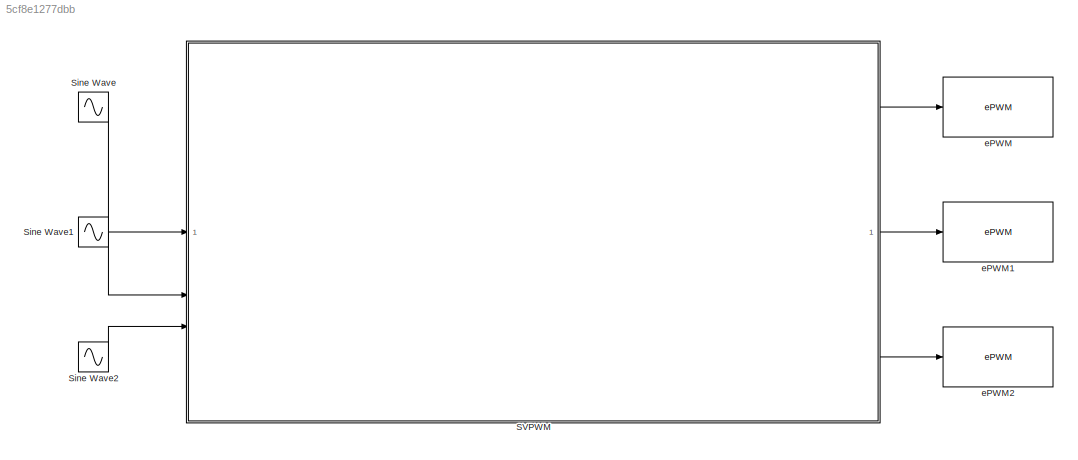
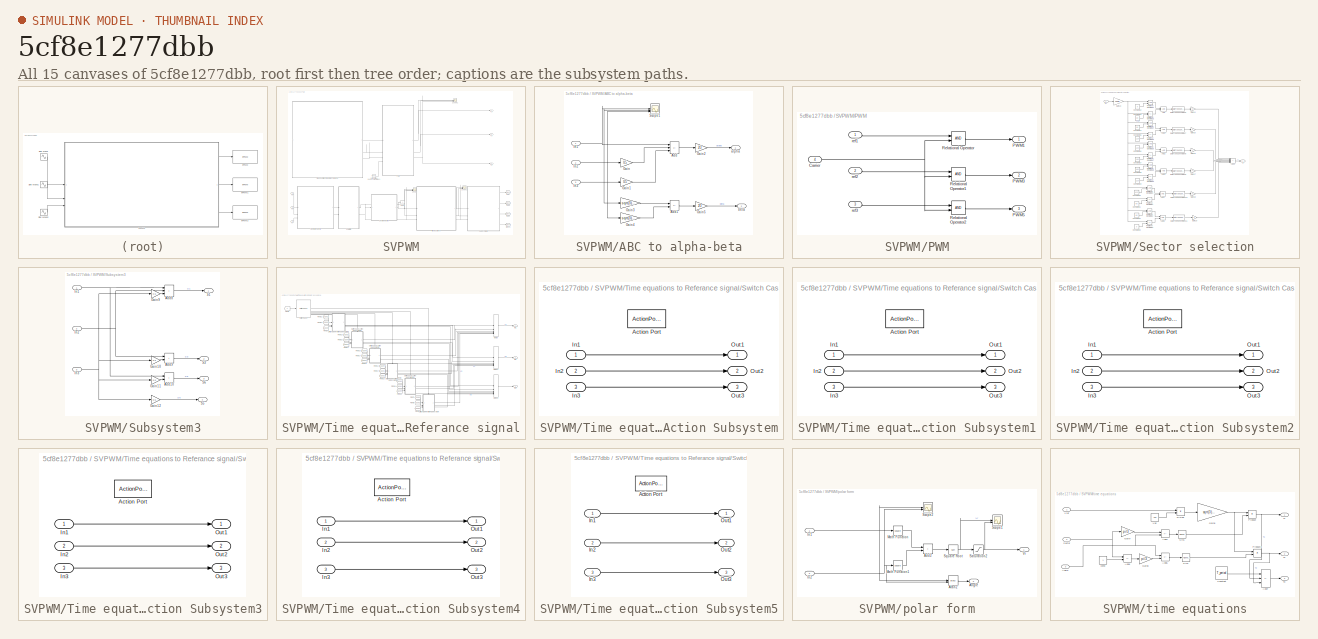
[diagram: thumbnail index - all 15 canvases of the model, root first then tree order]
MODEL slx_5cf8e1277dbb
KIND model
CONFIG AbsTol = auto
CONFIG EnableMultiTasking = on
CONFIG FixedStep = auto
CONFIG MaxStep = auto
CONFIG MinStep = auto
CONFIG RelTol = 1e-3
CONFIG SampleTimeConstraint = Unconstrained
CONFIG SolverName = FixedStepDiscrete
CONFIG StartTime = 0.0
CONFIG StopTime = Inf
BLOCK [SubSystem] SVPWM
BLOCK [SubSystem] SVPWM/ABC to alpha-beta
BLOCK [Sum] SVPWM/ABC to alpha-beta/Add
  IconShape = rectangular
  Inputs = +--
BLOCK [Sum] SVPWM/ABC to alpha-beta/Add1
  IconShape = rectangular
  Inputs = +-
BLOCK [Gain] SVPWM/ABC to alpha-beta/Gain
  Gain = 0.5
BLOCK [Gain] SVPWM/ABC to alpha-beta/Gain1
  Gain = 0.5
BLOCK [Gain] SVPWM/ABC to alpha-beta/Gain2
  Gain = 2/3
BLOCK [Gain] SVPWM/ABC to alpha-beta/Gain3
  Gain = sqrt(3)/2
BLOCK [Gain] SVPWM/ABC to alpha-beta/Gain4
  Gain = sqrt(3)/2
BLOCK [Gain] SVPWM/ABC to alpha-beta/Gain5
  Gain = 2/3
BLOCK [Inport] SVPWM/ABC to alpha-beta/In1
BLOCK [Inport] SVPWM/ABC to alpha-beta/In2
  Port = 2
BLOCK [Inport] SVPWM/ABC to alpha-beta/In3
  Port = 3
BLOCK [Scope] SVPWM/ABC to alpha-beta/Scope1
  Floating = off
  NumInputPorts = 3
  ScopeSpecificationString = Simulink.scopes.TimeScopeBlockCfg('CurrentConfiguration', extmgr.ConfigurationSet(extmgr.Configuration('Core','General UI',true),extmgr.Configuration('Core','Source UI',true),extmgr.Configuration('Sources','WiredSimulink',true,'DataLoggingVariableName','ScopeData1'),extmgr.Configuration('Visuals','Time Domain',true,'SerializedDisplays',{struct('MinYLimReal','-196.71599','MaxYLimReal','220.21077','...<+1548ch>
BLOCK [Outport] SVPWM/ABC to alpha-beta/alpha
BLOCK [Outport] SVPWM/ABC to alpha-beta/beta
  Port = 2
BLOCK [Goto] SVPWM/Goto10
  GotoTag = case4
  TagVisibility = global
BLOCK [Goto] SVPWM/Goto6
  TagVisibility = global
BLOCK [Goto] SVPWM/Goto7
  GotoTag = case1
  TagVisibility = global
BLOCK [Goto] SVPWM/Goto8
  GotoTag = case2
  TagVisibility = global
BLOCK [Goto] SVPWM/Goto9
  GotoTag = case3
  TagVisibility = global
BLOCK [SubSystem] SVPWM/PWM
BLOCK [Inport] SVPWM/PWM/Carrier
  Port = 4
BLOCK [Outport] SVPWM/PWM/PWM1
BLOCK [Outport] SVPWM/PWM/PWM3
  Port = 2
BLOCK [Outport] SVPWM/PWM/PWM5
  Port = 3
BLOCK [RelationalOperator] SVPWM/PWM/Relational Operator
  InputSameDT = off
  OutDataTypeStr = boolean
  RndMeth = Simplest
BLOCK [RelationalOperator] SVPWM/PWM/Relational Operator1
  InputSameDT = off
  OutDataTypeStr = boolean
  RndMeth = Simplest
BLOCK [RelationalOperator] SVPWM/PWM/Relational Operator2
  InputSameDT = off
  OutDataTypeStr = boolean
  RndMeth = Simplest
BLOCK [Inport] SVPWM/PWM/ref1
BLOCK [Inport] SVPWM/PWM/ref2
  Port = 2
BLOCK [Inport] SVPWM/PWM/ref3
  Port = 3
BLOCK [Reference] SVPWM/Repeating Sequence Interpolated1  REF=simulink/Sources/Repeating
Sequence
Interpolated
  SourceBlock = simulink/Sources/Repeating\nSequence\nInterpolated
  SourceType = Repeating Sequence Interpolated
BLOCK [Scope] SVPWM/Scope
  Floating = off
  NumInputPorts = 3
  ScopeSpecificationString = Simulink.scopes.TimeScopeBlockCfg('CurrentConfiguration', extmgr.ConfigurationSet(extmgr.Configuration('Core','General UI',true),extmgr.Configuration('Core','Source UI',true),extmgr.Configuration('Sources','WiredSimulink',true,'DataLoggingVariableName','ScopeData1'),extmgr.Configuration('Visuals','Time Domain',true),extmgr.Configuration('Tools','Plot Navigation',true),extmgr.Configuration('Tools',...<+40ch>
BLOCK [Scope] SVPWM/Scope1
  Floating = off
  NumInputPorts = 3
  ScopeSpecificationString = Simulink.scopes.TimeScopeBlockCfg('CurrentConfiguration', extmgr.ConfigurationSet(extmgr.Configuration('Core','General UI',true),extmgr.Configuration('Core','Source UI',true),extmgr.Configuration('Sources','WiredSimulink',true,'DataLoggingVariableName','ScopeData2'),extmgr.Configuration('Visuals','Time Domain',true),extmgr.Configuration('Tools','Plot Navigation',true),extmgr.Configuration('Tools',...<+40ch>
BLOCK [Scope] SVPWM/Scope2
  Floating = off
  NumInputPorts = 3
  ScopeSpecificationString = Simulink.scopes.TimeScopeBlockCfg('CurrentConfiguration', extmgr.ConfigurationSet(extmgr.Configuration('Core','General UI',true),extmgr.Configuration('Core','Source UI',true),extmgr.Configuration('Sources','WiredSimulink',true,'DataLoggingVariableName','ScopeData3'),extmgr.Configuration('Visuals','Time Domain',true,'SerializedDisplays',{struct('MinYLimReal','-0.125','MaxYLimReal','1.125','YLabelRe...<+3033ch>
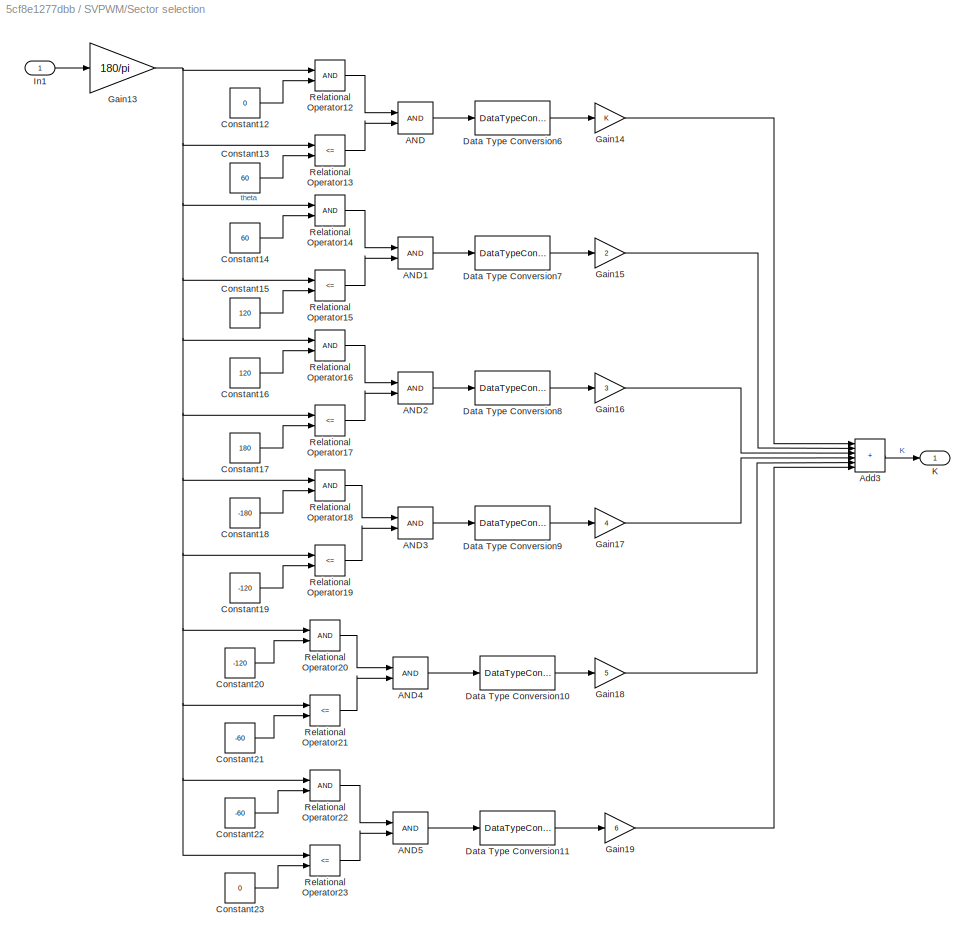
BLOCK [SubSystem] SVPWM/Sector selection
BLOCK [Logic] SVPWM/Sector selection/AND
  AllPortsSameDT = off
  IconShape = distinctive
  OutDataTypeStr = boolean
BLOCK [Logic] SVPWM/Sector selection/AND1
  AllPortsSameDT = off
  IconShape = distinctive
  OutDataTypeStr = boolean
BLOCK [Logic] SVPWM/Sector selection/AND2
  AllPortsSameDT = off
  IconShape = distinctive
  OutDataTypeStr = boolean
BLOCK [Logic] SVPWM/Sector selection/AND3
  AllPortsSameDT = off
  IconShape = distinctive
  OutDataTypeStr = boolean
BLOCK [Logic] SVPWM/Sector selection/AND4
  AllPortsSameDT = off
  IconShape = distinctive
  OutDataTypeStr = boolean
BLOCK [Logic] SVPWM/Sector selection/AND5
  AllPortsSameDT = off
  IconShape = distinctive
  OutDataTypeStr = boolean
BLOCK [Sum] SVPWM/Sector selection/Add3
  IconShape = rectangular
  Inputs = ++++++
BLOCK [Constant] SVPWM/Sector selection/Constant12
  Value = 0
BLOCK [Constant] SVPWM/Sector selection/Constant13
  Value = 60
BLOCK [Constant] SVPWM/Sector selection/Constant14
  Value = 60
BLOCK [Constant] SVPWM/Sector selection/Constant15
  Value = 120
BLOCK [Constant] SVPWM/Sector selection/Constant16
  Value = 120
BLOCK [Constant] SVPWM/Sector selection/Constant17
  Value = 180
BLOCK [Constant] SVPWM/Sector selection/Constant18
  Value = -180
BLOCK [Constant] SVPWM/Sector selection/Constant19
  Value = -120
BLOCK [Constant] SVPWM/Sector selection/Constant20
  Value = -120
BLOCK [Constant] SVPWM/Sector selection/Constant21
  Value = -60
BLOCK [Constant] SVPWM/Sector selection/Constant22
  Value = -60
BLOCK [Constant] SVPWM/Sector selection/Constant23
  Value = 0
BLOCK [DataTypeConversion] SVPWM/Sector selection/Data Type Conversion10
  RndMeth = Floor
  SaturateOnIntegerOverflow = off
BLOCK [DataTypeConversion] SVPWM/Sector selection/Data Type Conversion11
  RndMeth = Floor
  SaturateOnIntegerOverflow = off
BLOCK [DataTypeConversion] SVPWM/Sector selection/Data Type Conversion6
  RndMeth = Floor
  SaturateOnIntegerOverflow = off
BLOCK [DataTypeConversion] SVPWM/Sector selection/Data Type Conversion7
  RndMeth = Floor
  SaturateOnIntegerOverflow = off
BLOCK [DataTypeConversion] SVPWM/Sector selection/Data Type Conversion8
  RndMeth = Floor
  SaturateOnIntegerOverflow = off
BLOCK [DataTypeConversion] SVPWM/Sector selection/Data Type Conversion9
  RndMeth = Floor
  SaturateOnIntegerOverflow = off
BLOCK [Gain] SVPWM/Sector selection/Gain13
  Gain = 180/pi
BLOCK [Gain] SVPWM/Sector selection/Gain14
BLOCK [Gain] SVPWM/Sector selection/Gain15
  Gain = 2
BLOCK [Gain] SVPWM/Sector selection/Gain16
  Gain = 3
BLOCK [Gain] SVPWM/Sector selection/Gain17
  Gain = 4
BLOCK [Gain] SVPWM/Sector selection/Gain18
  Gain = 5
BLOCK [Gain] SVPWM/Sector selection/Gain19
  Gain = 6
BLOCK [Inport] SVPWM/Sector selection/In1
BLOCK [Outport] SVPWM/Sector selection/K
BLOCK [RelationalOperator] SVPWM/Sector selection/Relational Operator12
  InputSameDT = off
  OutDataTypeStr = boolean
  RndMeth = Simplest
BLOCK [RelationalOperator] SVPWM/Sector selection/Relational Operator13
  InputSameDT = off
  Operator = <=
  OutDataTypeStr = boolean
  RndMeth = Simplest
BLOCK [RelationalOperator] SVPWM/Sector selection/Relational Operator14
  InputSameDT = off
  OutDataTypeStr = boolean
  RndMeth = Simplest
BLOCK [RelationalOperator] SVPWM/Sector selection/Relational Operator15
  InputSameDT = off
  Operator = <=
  OutDataTypeStr = boolean
  RndMeth = Simplest
BLOCK [RelationalOperator] SVPWM/Sector selection/Relational Operator16
  InputSameDT = off
  OutDataTypeStr = boolean
  RndMeth = Simplest
BLOCK [RelationalOperator] SVPWM/Sector selection/Relational Operator17
  InputSameDT = off
  Operator = <=
  OutDataTypeStr = boolean
  RndMeth = Simplest
BLOCK [RelationalOperator] SVPWM/Sector selection/Relational Operator18
  InputSameDT = off
  OutDataTypeStr = boolean
  RndMeth = Simplest
BLOCK [RelationalOperator] SVPWM/Sector selection/Relational Operator19
  InputSameDT = off
  Operator = <=
  OutDataTypeStr = boolean
  RndMeth = Simplest
BLOCK [RelationalOperator] SVPWM/Sector selection/Relational Operator20
  InputSameDT = off
  OutDataTypeStr = boolean
  RndMeth = Simplest
BLOCK [RelationalOperator] SVPWM/Sector selection/Relational Operator21
  InputSameDT = off
  Operator = <=
  OutDataTypeStr = boolean
  RndMeth = Simplest
BLOCK [RelationalOperator] SVPWM/Sector selection/Relational Operator22
  InputSameDT = off
  OutDataTypeStr = boolean
  RndMeth = Simplest
BLOCK [RelationalOperator] SVPWM/Sector selection/Relational Operator23
  InputSameDT = off
  Operator = <=
  OutDataTypeStr = boolean
  RndMeth = Simplest
BLOCK [SubSystem] SVPWM/Subsystem3
BLOCK [Sum] SVPWM/Subsystem3/Add10
  IconShape = rectangular
BLOCK [Sum] SVPWM/Subsystem3/Add8
  IconShape = rectangular
  Inputs = +++
BLOCK [Sum] SVPWM/Subsystem3/Add9
  IconShape = rectangular
BLOCK [Gain] SVPWM/Subsystem3/Gain10
  Gain = 0.5
BLOCK [Gain] SVPWM/Subsystem3/Gain11
  Gain = 0.5
BLOCK [Gain] SVPWM/Subsystem3/Gain12
  Gain = 0.5
BLOCK [Gain] SVPWM/Subsystem3/Gain9
  Gain = 0.5
BLOCK [Inport] SVPWM/Subsystem3/In1
BLOCK [Inport] SVPWM/Subsystem3/In2
  Port = 2
BLOCK [Inport] SVPWM/Subsystem3/In3
  Port = 3
BLOCK [Outport] SVPWM/Subsystem3/S1
BLOCK [Outport] SVPWM/Subsystem3/S3
  Port = 2
BLOCK [Outport] SVPWM/Subsystem3/S5
  Port = 4
BLOCK [Outport] SVPWM/Subsystem3/S6
  Port = 3
BLOCK [Outport] SVPWM/T1
BLOCK [Outport] SVPWM/T3
  Port = 2
BLOCK [Outport] SVPWM/T5
  Port = 3
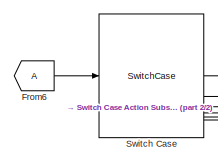
[diagram: SVPWM/Time equations to Referance signal - part 1/2, top left region]
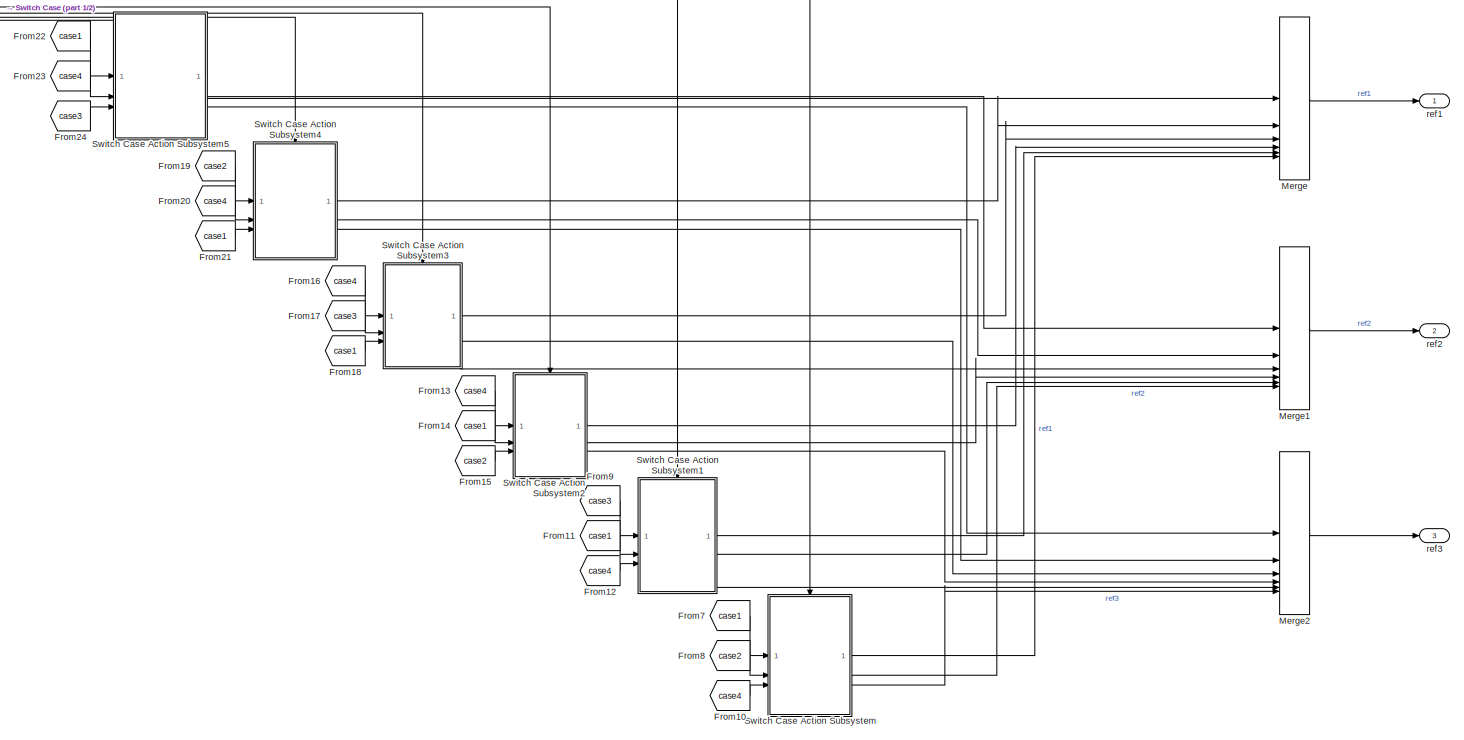
[diagram: SVPWM/Time equations to Referance signal - part 2/2, most of the canvas]
BLOCK [SubSystem] SVPWM/Time equations to Referance signal
BLOCK [From] SVPWM/Time equations to Referance signal/From10
  GotoTag = case4
  TagVisibility = global
BLOCK [From] SVPWM/Time equations to Referance signal/From11
  GotoTag = case1
  TagVisibility = global
BLOCK [From] SVPWM/Time equations to Referance signal/From12
  GotoTag = case4
  TagVisibility = global
BLOCK [From] SVPWM/Time equations to Referance signal/From13
  GotoTag = case4
  TagVisibility = global
BLOCK [From] SVPWM/Time equations to Referance signal/From14
  GotoTag = case1
  TagVisibility = global
BLOCK [From] SVPWM/Time equations to Referance signal/From15
  GotoTag = case2
  TagVisibility = global
BLOCK [From] SVPWM/Time equations to Referance signal/From16
  GotoTag = case4
  TagVisibility = global
BLOCK [From] SVPWM/Time equations to Referance signal/From17
  GotoTag = case3
  TagVisibility = global
BLOCK [From] SVPWM/Time equations to Referance signal/From18
  GotoTag = case1
  TagVisibility = global
BLOCK [From] SVPWM/Time equations to Referance signal/From19
  GotoTag = case2
  TagVisibility = global
BLOCK [From] SVPWM/Time equations to Referance signal/From20
  GotoTag = case4
  TagVisibility = global
BLOCK [From] SVPWM/Time equations to Referance signal/From21
  GotoTag = case1
  TagVisibility = global
BLOCK [From] SVPWM/Time equations to Referance signal/From22
  GotoTag = case1
  TagVisibility = global
BLOCK [From] SVPWM/Time equations to Referance signal/From23
  GotoTag = case4
  TagVisibility = global
BLOCK [From] SVPWM/Time equations to Referance signal/From24
  GotoTag = case3
  TagVisibility = global
BLOCK [From] SVPWM/Time equations to Referance signal/From6
  TagVisibility = global
BLOCK [From] SVPWM/Time equations to Referance signal/From7
  GotoTag = case1
  TagVisibility = global
BLOCK [From] SVPWM/Time equations to Referance signal/From8
  GotoTag = case2
  TagVisibility = global
BLOCK [From] SVPWM/Time equations to Referance signal/From9
  GotoTag = case3
  TagVisibility = global
BLOCK [Merge] SVPWM/Time equations to Referance signal/Merge
  Inputs = 6
BLOCK [Merge] SVPWM/Time equations to Referance signal/Merge1
  Inputs = 6
BLOCK [Merge] SVPWM/Time equations to Referance signal/Merge2
  Inputs = 6
BLOCK [SwitchCase] SVPWM/Time equations to Referance signal/Switch Case
  CaseConditions = {1 2 3 4 5 6}
BLOCK [SubSystem] SVPWM/Time equations to Referance signal/Switch Case Action Subsystem
  TreatAsAtomicUnit = on
BLOCK [ActionPort] SVPWM/Time equations to Referance signal/Switch Case Action Subsystem/Action Port
  ActionPortLabel = case [ 1 ]:
BLOCK [Inport] SVPWM/Time equations to Referance signal/Switch Case Action Subsystem/In1
BLOCK [Inport] SVPWM/Time equations to Referance signal/Switch Case Action Subsystem/In2
  Port = 2
BLOCK [Inport] SVPWM/Time equations to Referance signal/Switch Case Action Subsystem/In3
  Port = 3
BLOCK [Outport] SVPWM/Time equations to Referance signal/Switch Case Action Subsystem/Out1
BLOCK [Outport] SVPWM/Time equations to Referance signal/Switch Case Action Subsystem/Out2
  Port = 2
BLOCK [Outport] SVPWM/Time equations to Referance signal/Switch Case Action Subsystem/Out3
  Port = 3
BLOCK [SubSystem] SVPWM/Time equations to Referance signal/Switch Case Action Subsystem1
  TreatAsAtomicUnit = on
BLOCK [ActionPort] SVPWM/Time equations to Referance signal/Switch Case Action Subsystem1/Action Port
  ActionPortLabel = case [ 2 ]:
BLOCK [Inport] SVPWM/Time equations to Referance signal/Switch Case Action Subsystem1/In1
BLOCK [Inport] SVPWM/Time equations to Referance signal/Switch Case Action Subsystem1/In2
  Port = 2
BLOCK [Inport] SVPWM/Time equations to Referance signal/Switch Case Action Subsystem1/In3
  Port = 3
BLOCK [Outport] SVPWM/Time equations to Referance signal/Switch Case Action Subsystem1/Out1
BLOCK [Outport] SVPWM/Time equations to Referance signal/Switch Case Action Subsystem1/Out2
  Port = 2
BLOCK [Outport] SVPWM/Time equations to Referance signal/Switch Case Action Subsystem1/Out3
  Port = 3
BLOCK [SubSystem] SVPWM/Time equations to Referance signal/Switch Case Action Subsystem2
  TreatAsAtomicUnit = on
BLOCK [ActionPort] SVPWM/Time equations to Referance signal/Switch Case Action Subsystem2/Action Port
  ActionPortLabel = case [ 3 ]:
BLOCK [Inport] SVPWM/Time equations to Referance signal/Switch Case Action Subsystem2/In1
BLOCK [Inport] SVPWM/Time equations to Referance signal/Switch Case Action Subsystem2/In2
  Port = 2
BLOCK [Inport] SVPWM/Time equations to Referance signal/Switch Case Action Subsystem2/In3
  Port = 3
BLOCK [Outport] SVPWM/Time equations to Referance signal/Switch Case Action Subsystem2/Out1
BLOCK [Outport] SVPWM/Time equations to Referance signal/Switch Case Action Subsystem2/Out2
  Port = 2
BLOCK [Outport] SVPWM/Time equations to Referance signal/Switch Case Action Subsystem2/Out3
  Port = 3
BLOCK [SubSystem] SVPWM/Time equations to Referance signal/Switch Case Action Subsystem3
  TreatAsAtomicUnit = on
BLOCK [ActionPort] SVPWM/Time equations to Referance signal/Switch Case Action Subsystem3/Action Port
  ActionPortLabel = case [ 4 ]:
BLOCK [Inport] SVPWM/Time equations to Referance signal/Switch Case Action Subsystem3/In1
BLOCK [Inport] SVPWM/Time equations to Referance signal/Switch Case Action Subsystem3/In2
  Port = 2
BLOCK [Inport] SVPWM/Time equations to Referance signal/Switch Case Action Subsystem3/In3
  Port = 3
BLOCK [Outport] SVPWM/Time equations to Referance signal/Switch Case Action Subsystem3/Out1
BLOCK [Outport] SVPWM/Time equations to Referance signal/Switch Case Action Subsystem3/Out2
  Port = 2
BLOCK [Outport] SVPWM/Time equations to Referance signal/Switch Case Action Subsystem3/Out3
  Port = 3
BLOCK [SubSystem] SVPWM/Time equations to Referance signal/Switch Case Action Subsystem4
  TreatAsAtomicUnit = on
BLOCK [ActionPort] SVPWM/Time equations to Referance signal/Switch Case Action Subsystem4/Action Port
  ActionPortLabel = case [ 5 ]:
BLOCK [Inport] SVPWM/Time equations to Referance signal/Switch Case Action Subsystem4/In1
BLOCK [Inport] SVPWM/Time equations to Referance signal/Switch Case Action Subsystem4/In2
  Port = 2
BLOCK [Inport] SVPWM/Time equations to Referance signal/Switch Case Action Subsystem4/In3
  Port = 3
BLOCK [Outport] SVPWM/Time equations to Referance signal/Switch Case Action Subsystem4/Out1
BLOCK [Outport] SVPWM/Time equations to Referance signal/Switch Case Action Subsystem4/Out2
  Port = 2
BLOCK [Outport] SVPWM/Time equations to Referance signal/Switch Case Action Subsystem4/Out3
  Port = 3
BLOCK [SubSystem] SVPWM/Time equations to Referance signal/Switch Case Action Subsystem5
  TreatAsAtomicUnit = on
BLOCK [ActionPort] SVPWM/Time equations to Referance signal/Switch Case Action Subsystem5/Action Port
  ActionPortLabel = case [ 6 ]:
BLOCK [Inport] SVPWM/Time equations to Referance signal/Switch Case Action Subsystem5/In1
BLOCK [Inport] SVPWM/Time equations to Referance signal/Switch Case Action Subsystem5/In2
  Port = 2
BLOCK [Inport] SVPWM/Time equations to Referance signal/Switch Case Action Subsystem5/In3
  Port = 3
BLOCK [Outport] SVPWM/Time equations to Referance signal/Switch Case Action Subsystem5/Out1
BLOCK [Outport] SVPWM/Time equations to Referance signal/Switch Case Action Subsystem5/Out2
  Port = 2
BLOCK [Outport] SVPWM/Time equations to Referance signal/Switch Case Action Subsystem5/Out3
  Port = 3
BLOCK [Outport] SVPWM/Time equations to Referance signal/ref1
BLOCK [Outport] SVPWM/Time equations to Referance signal/ref2 
  Port = 2
BLOCK [Outport] SVPWM/Time equations to Referance signal/ref3
  Port = 3
BLOCK [Inport] SVPWM/Va
BLOCK [Inport] SVPWM/Vb
  Port = 2
BLOCK [Inport] SVPWM/Vc
  Port = 3
BLOCK [SubSystem] SVPWM/polar form
BLOCK [Sum] SVPWM/polar form/Add2
  IconShape = rectangular
BLOCK [Outport] SVPWM/polar form/Angle
  Port = 2
BLOCK [Trigonometry] SVPWM/polar form/Atan2
  Operator = atan2
BLOCK [Inport] SVPWM/polar form/In1
BLOCK [Inport] SVPWM/polar form/In2
  Port = 2
BLOCK [Math] SVPWM/polar form/Math Function
  Operator = square
  SignedPower = on
BLOCK [Math] SVPWM/polar form/Math Function1
  Operator = square
  SignedPower = on
BLOCK [Saturate] SVPWM/polar form/Saturation2
  LowerLimit = 0
  UpperLimit = 0.95 * Vdc /sqrt(3)
BLOCK [Scope] SVPWM/polar form/Scope1
  Floating = off
  NumInputPorts = 2
  ScopeSpecificationString = Simulink.scopes.TimeScopeBlockCfg('CurrentConfiguration', extmgr.ConfigurationSet(extmgr.Configuration('Core','General UI',true),extmgr.Configuration('Core','Source UI',true),extmgr.Configuration('Sources','WiredSimulink',true,'DataLoggingVariableName','ScopeData8'),extmgr.Configuration('Visuals','Time Domain',true,'SerializedDisplays',{struct('MinYLimReal','-267.621','MaxYLimReal','271.36371','YL...<+1518ch>
BLOCK [Scope] SVPWM/polar form/Scope2
  Floating = off
  NumInputPorts = 2
  ScopeSpecificationString = Simulink.scopes.TimeScopeBlockCfg('CurrentConfiguration', extmgr.ConfigurationSet(extmgr.Configuration('Core','General UI',true),extmgr.Configuration('Core','Source UI',true),extmgr.Configuration('Sources','WiredSimulink',true,'DataLoggingVariableName','ScopeData2'),extmgr.Configuration('Visuals','Time Domain',true,'SerializedDisplays',{struct('MinYLimReal','-2.95643','MaxYLimReal','5.62522','YLab...<+1528ch>
BLOCK [Sqrt] SVPWM/polar form/Square Root
BLOCK [Outport] SVPWM/polar form/Vr
BLOCK [SubSystem] SVPWM/time equations
BLOCK [Sum] SVPWM/time equations/Add4
  IconShape = rectangular
  Inputs = +-
BLOCK [Sum] SVPWM/time equations/Add5
  IconShape = rectangular
  Inputs = +-
BLOCK [Sum] SVPWM/time equations/Add6
  IconShape = rectangular
  Inputs = +-
BLOCK [Sum] SVPWM/time equations/Add7
  IconShape = rectangular
  Inputs = +--
BLOCK [Inport] SVPWM/time equations/Angle
  Port = 3
BLOCK [Constant] SVPWM/time equations/Constant
  Value = T_period
BLOCK [Product] SVPWM/time equations/Divide
  Inputs = */
BLOCK [Gain] SVPWM/time equations/Gain6
  Gain = sqrt(3)*(T_period)
BLOCK [Gain] SVPWM/time equations/Gain7
  Gain = pi/3
BLOCK [Gain] SVPWM/time equations/Gain8
  Gain = pi/3
BLOCK [Product] SVPWM/time equations/Product
BLOCK [Product] SVPWM/time equations/Product1
BLOCK [Inport] SVPWM/time equations/Sector
  Port = 2
BLOCK [Trigonometry] SVPWM/time equations/Sin1
BLOCK [Trigonometry] SVPWM/time equations/Sin4
BLOCK [Outport] SVPWM/time equations/T0
  Port = 3
BLOCK [Outport] SVPWM/time equations/T1
BLOCK [Outport] SVPWM/time equations/T2
  Port = 2
BLOCK [Constant] SVPWM/time equations/Vdc
  Value = Vdc
BLOCK [Inport] SVPWM/time equations/Vref
BLOCK [Constant] SVPWM/time equations/const
BLOCK [Sin] Sine Wave
  SampleTime = 0
BLOCK [Sin] Sine Wave1
  SampleTime = 0
BLOCK [Sin] Sine Wave2
  SampleTime = 0
BLOCK [Reference] ePWM  REF=c2802xlib/ePWM
  LibrarySourceBlock = c2837xDlib/ePWM
  SourceBlock = c2802xlib/ePWM
  SourceType = ePWM Type 1-4
  UserDataPersistent = on
BLOCK [Reference] ePWM1  REF=c2802xlib/ePWM
  LibrarySourceBlock = c2837xDlib/ePWM
  SourceBlock = c2802xlib/ePWM
  SourceType = ePWM Type 1-4
  UserDataPersistent = on
BLOCK [Reference] ePWM2  REF=c2802xlib/ePWM
  LibrarySourceBlock = c2837xDlib/ePWM
  SourceBlock = c2802xlib/ePWM
  SourceType = ePWM Type 1-4
  UserDataPersistent = on
LINE SVPWM/ABC to alpha-beta/Add1:1 -> SVPWM/ABC to alpha-beta/Gain5:1
LINE SVPWM/ABC to alpha-beta/Add:1 -> SVPWM/ABC to alpha-beta/Gain2:1
LINE SVPWM/ABC to alpha-beta/Gain1:1 -> SVPWM/ABC to alpha-beta/Add:3
LINE SVPWM/ABC to alpha-beta/Gain2:1 -> SVPWM/ABC to alpha-beta/alpha:1
LINE SVPWM/ABC to alpha-beta/Gain3:1 -> SVPWM/ABC to alpha-beta/Add1:1
LINE SVPWM/ABC to alpha-beta/Gain4:1 -> SVPWM/ABC to alpha-beta/Add1:2
LINE SVPWM/ABC to alpha-beta/Gain5:1 -> SVPWM/ABC to alpha-beta/beta:1
LINE SVPWM/ABC to alpha-beta/Gain:1 -> SVPWM/ABC to alpha-beta/Add:2
NET SVPWM/ABC to alpha-beta/In1:1 -> SVPWM/ABC to alpha-beta/Add:1, SVPWM/ABC to alpha-beta/Scope1:1
NET SVPWM/ABC to alpha-beta/In2:1 -> SVPWM/ABC to alpha-beta/Gain3:1, SVPWM/ABC to alpha-beta/Gain:1, SVPWM/ABC to alpha-beta/Scope1:2
NET SVPWM/ABC to alpha-beta/In3:1 -> SVPWM/ABC to alpha-beta/Gain1:1, SVPWM/ABC to alpha-beta/Gain4:1, SVPWM/ABC to alpha-beta/Scope1:3
LINE SVPWM/ABC to alpha-beta:1 -> SVPWM/polar form:1
LINE SVPWM/ABC to alpha-beta:2 -> SVPWM/polar form:2
NET SVPWM/PWM/Carrier:1 -> SVPWM/PWM/Relational Operator1:2, SVPWM/PWM/Relational Operator2:2, SVPWM/PWM/Relational Operator:2
LINE SVPWM/PWM/Relational Operator1:1 -> SVPWM/PWM/PWM3:1
LINE SVPWM/PWM/Relational Operator2:1 -> SVPWM/PWM/PWM5:1
LINE SVPWM/PWM/Relational Operator:1 -> SVPWM/PWM/PWM1:1
LINE SVPWM/PWM/ref1:1 -> SVPWM/PWM/Relational Operator:1
LINE SVPWM/PWM/ref2:1 -> SVPWM/PWM/Relational Operator1:1
LINE SVPWM/PWM/ref3:1 -> SVPWM/PWM/Relational Operator2:1
NET SVPWM/PWM:1 -> SVPWM/Scope2:1, SVPWM/T1:1
NET SVPWM/PWM:2 -> SVPWM/Scope2:2, SVPWM/T3:1
NET SVPWM/PWM:3 -> SVPWM/Scope2:3, SVPWM/T5:1
LINE SVPWM/Repeating Sequence Interpolated1:1 -> SVPWM/PWM:4
LINE SVPWM/Sector selection/AND1:1 -> SVPWM/Sector selection/Data Type Conversion7:1
LINE SVPWM/Sector selection/AND2:1 -> SVPWM/Sector selection/Data Type Conversion8:1
LINE SVPWM/Sector selection/AND3:1 -> SVPWM/Sector selection/Data Type Conversion9:1
LINE SVPWM/Sector selection/AND4:1 -> SVPWM/Sector selection/Data Type Conversion10:1
LINE SVPWM/Sector selection/AND5:1 -> SVPWM/Sector selection/Data Type Conversion11:1
LINE SVPWM/Sector selection/AND:1 -> SVPWM/Sector selection/Data Type Conversion6:1
LINE SVPWM/Sector selection/Add3:1 -> SVPWM/Sector selection/K:1
LINE SVPWM/Sector selection/Constant12:1 -> SVPWM/Sector selection/Relational Operator12:2
LINE SVPWM/Sector selection/Constant13:1 -> SVPWM/Sector selection/Relational Operator13:2
LINE SVPWM/Sector selection/Constant14:1 -> SVPWM/Sector selection/Relational Operator14:2
LINE SVPWM/Sector selection/Constant15:1 -> SVPWM/Sector selection/Relational Operator15:2
LINE SVPWM/Sector selection/Constant16:1 -> SVPWM/Sector selection/Relational Operator16:2
LINE SVPWM/Sector selection/Constant17:1 -> SVPWM/Sector selection/Relational Operator17:2
LINE SVPWM/Sector selection/Constant18:1 -> SVPWM/Sector selection/Relational Operator18:2
LINE SVPWM/Sector selection/Constant19:1 -> SVPWM/Sector selection/Relational Operator19:2
LINE SVPWM/Sector selection/Constant20:1 -> SVPWM/Sector selection/Relational Operator20:2
LINE SVPWM/Sector selection/Constant21:1 -> SVPWM/Sector selection/Relational Operator21:2
LINE SVPWM/Sector selection/Constant22:1 -> SVPWM/Sector selection/Relational Operator22:2
LINE SVPWM/Sector selection/Constant23:1 -> SVPWM/Sector selection/Relational Operator23:2
LINE SVPWM/Sector selection/Data Type Conversion10:1 -> SVPWM/Sector selection/Gain18:1
LINE SVPWM/Sector selection/Data Type Conversion11:1 -> SVPWM/Sector selection/Gain19:1
LINE SVPWM/Sector selection/Data Type Conversion6:1 -> SVPWM/Sector selection/Gain14:1
LINE SVPWM/Sector selection/Data Type Conversion7:1 -> SVPWM/Sector selection/Gain15:1
LINE SVPWM/Sector selection/Data Type Conversion8:1 -> SVPWM/Sector selection/Gain16:1
LINE SVPWM/Sector selection/Data Type Conversion9:1 -> SVPWM/Sector selection/Gain17:1
NET SVPWM/Sector selection/Gain13:1 -> SVPWM/Sector selection/Relational Operator12:1, SVPWM/Sector selection/Relational Operator13:1, SVPWM/Sector selection/Relational Operator14:1, SVPWM/Sector selection/Relational Operator15:1, SVPWM/Sector selection/Relational Operator16:1, SVPWM/Sector selection/Relational Operator17:1, SVPWM/Sector selection/Relational Operator18:1, SVPWM/Sector selection/Relational Operator19:1, SVPWM/Sector selection/Relational Operator20:1, SVPWM/Sector selection/Relational Operator21:1, SVPWM/Sector selection/Relational Operator22:1, SVPWM/Sector selection/Relational Operator23:1
LINE SVPWM/Sector selection/Gain14:1 -> SVPWM/Sector selection/Add3:1
LINE SVPWM/Sector selection/Gain15:1 -> SVPWM/Sector selection/Add3:2
LINE SVPWM/Sector selection/Gain16:1 -> SVPWM/Sector selection/Add3:3
LINE SVPWM/Sector selection/Gain17:1 -> SVPWM/Sector selection/Add3:4
LINE SVPWM/Sector selection/Gain18:1 -> SVPWM/Sector selection/Add3:5
LINE SVPWM/Sector selection/Gain19:1 -> SVPWM/Sector selection/Add3:6
LINE SVPWM/Sector selection/In1:1 -> SVPWM/Sector selection/Gain13:1
LINE SVPWM/Sector selection/Relational Operator12:1 -> SVPWM/Sector selection/AND:1
LINE SVPWM/Sector selection/Relational Operator13:1 -> SVPWM/Sector selection/AND:2
LINE SVPWM/Sector selection/Relational Operator14:1 -> SVPWM/Sector selection/AND1:1
LINE SVPWM/Sector selection/Relational Operator15:1 -> SVPWM/Sector selection/AND1:2
LINE SVPWM/Sector selection/Relational Operator16:1 -> SVPWM/Sector selection/AND2:1
LINE SVPWM/Sector selection/Relational Operator17:1 -> SVPWM/Sector selection/AND2:2
LINE SVPWM/Sector selection/Relational Operator18:1 -> SVPWM/Sector selection/AND3:1
LINE SVPWM/Sector selection/Relational Operator19:1 -> SVPWM/Sector selection/AND3:2
LINE SVPWM/Sector selection/Relational Operator20:1 -> SVPWM/Sector selection/AND4:1
LINE SVPWM/Sector selection/Relational Operator21:1 -> SVPWM/Sector selection/AND4:2
LINE SVPWM/Sector selection/Relational Operator22:1 -> SVPWM/Sector selection/AND5:1
LINE SVPWM/Sector selection/Relational Operator23:1 -> SVPWM/Sector selection/AND5:2
NET SVPWM/Sector selection:1 -> SVPWM/Goto6:1, SVPWM/Scope:2, SVPWM/time equations:2
LINE SVPWM/Subsystem3/Add10:1 -> SVPWM/Subsystem3/S6:1
LINE SVPWM/Subsystem3/Add8:1 -> SVPWM/Subsystem3/S1:1
LINE SVPWM/Subsystem3/Add9:1 -> SVPWM/Subsystem3/S3:1
LINE SVPWM/Subsystem3/Gain10:1 -> SVPWM/Subsystem3/Add9:2
LINE SVPWM/Subsystem3/Gain11:1 -> SVPWM/Subsystem3/Add10:2
LINE SVPWM/Subsystem3/Gain12:1 -> SVPWM/Subsystem3/S5:1
LINE SVPWM/Subsystem3/Gain9:1 -> SVPWM/Subsystem3/Add8:3
NET SVPWM/Subsystem3/In1:1 -> SVPWM/Subsystem3/Add10:1, SVPWM/Subsystem3/Add8:1
NET SVPWM/Subsystem3/In2:1 -> SVPWM/Subsystem3/Add8:2, SVPWM/Subsystem3/Add9:1
NET SVPWM/Subsystem3/In3:1 -> SVPWM/Subsystem3/Gain10:1, SVPWM/Subsystem3/Gain11:1, SVPWM/Subsystem3/Gain12:1, SVPWM/Subsystem3/Gain9:1
LINE SVPWM/Subsystem3:1 -> SVPWM/Goto7:1
LINE SVPWM/Subsystem3:2 -> SVPWM/Goto8:1
LINE SVPWM/Subsystem3:3 -> SVPWM/Goto9:1
LINE SVPWM/Subsystem3:4 -> SVPWM/Goto10:1
LINE SVPWM/Time equations to Referance signal/From10:1 -> SVPWM/Time equations to Referance signal/Switch Case Action Subsystem:3
LINE SVPWM/Time equations to Referance signal/From11:1 -> SVPWM/Time equations to Referance signal/Switch Case Action Subsystem1:2
LINE SVPWM/Time equations to Referance signal/From12:1 -> SVPWM/Time equations to Referance signal/Switch Case Action Subsystem1:3
LINE SVPWM/Time equations to Referance signal/From13:1 -> SVPWM/Time equations to Referance signal/Switch Case Action Subsystem2:1
LINE SVPWM/Time equations to Referance signal/From14:1 -> SVPWM/Time equations to Referance signal/Switch Case Action Subsystem2:2
LINE SVPWM/Time equations to Referance signal/From15:1 -> SVPWM/Time equations to Referance signal/Switch Case Action Subsystem2:3
LINE SVPWM/Time equations to Referance signal/From16:1 -> SVPWM/Time equations to Referance signal/Switch Case Action Subsystem3:1
LINE SVPWM/Time equations to Referance signal/From17:1 -> SVPWM/Time equations to Referance signal/Switch Case Action Subsystem3:2
LINE SVPWM/Time equations to Referance signal/From18:1 -> SVPWM/Time equations to Referance signal/Switch Case Action Subsystem3:3
LINE SVPWM/Time equations to Referance signal/From19:1 -> SVPWM/Time equations to Referance signal/Switch Case Action Subsystem4:1
LINE SVPWM/Time equations to Referance signal/From20:1 -> SVPWM/Time equations to Referance signal/Switch Case Action Subsystem4:2
LINE SVPWM/Time equations to Referance signal/From21:1 -> SVPWM/Time equations to Referance signal/Switch Case Action Subsystem4:3
LINE SVPWM/Time equations to Referance signal/From22:1 -> SVPWM/Time equations to Referance signal/Switch Case Action Subsystem5:1
LINE SVPWM/Time equations to Referance signal/From23:1 -> SVPWM/Time equations to Referance signal/Switch Case Action Subsystem5:2
LINE SVPWM/Time equations to Referance signal/From24:1 -> SVPWM/Time equations to Referance signal/Switch Case Action Subsystem5:3
LINE SVPWM/Time equations to Referance signal/From6:1 -> SVPWM/Time equations to Referance signal/Switch Case:1
LINE SVPWM/Time equations to Referance signal/From7:1 -> SVPWM/Time equations to Referance signal/Switch Case Action Subsystem:1
LINE SVPWM/Time equations to Referance signal/From8:1 -> SVPWM/Time equations to Referance signal/Switch Case Action Subsystem:2
LINE SVPWM/Time equations to Referance signal/From9:1 -> SVPWM/Time equations to Referance signal/Switch Case Action Subsystem1:1
LINE SVPWM/Time equations to Referance signal/Merge1:1 -> SVPWM/Time equations to Referance signal/ref2 :1
LINE SVPWM/Time equations to Referance signal/Merge2:1 -> SVPWM/Time equations to Referance signal/ref3:1
LINE SVPWM/Time equations to Referance signal/Merge:1 -> SVPWM/Time equations to Referance signal/ref1:1
LINE SVPWM/Time equations to Referance signal/Switch Case Action Subsystem/In1:1 -> SVPWM/Time equations to Referance signal/Switch Case Action Subsystem/Out1:1
LINE SVPWM/Time equations to Referance signal/Switch Case Action Subsystem/In2:1 -> SVPWM/Time equations to Referance signal/Switch Case Action Subsystem/Out2:1
LINE SVPWM/Time equations to Referance signal/Switch Case Action Subsystem/In3:1 -> SVPWM/Time equations to Referance signal/Switch Case Action Subsystem/Out3:1
LINE SVPWM/Time equations to Referance signal/Switch Case Action Subsystem1/In1:1 -> SVPWM/Time equations to Referance signal/Switch Case Action Subsystem1/Out1:1
LINE SVPWM/Time equations to Referance signal/Switch Case Action Subsystem1/In2:1 -> SVPWM/Time equations to Referance signal/Switch Case Action Subsystem1/Out2:1
LINE SVPWM/Time equations to Referance signal/Switch Case Action Subsystem1/In3:1 -> SVPWM/Time equations to Referance signal/Switch Case Action Subsystem1/Out3:1
LINE SVPWM/Time equations to Referance signal/Switch Case Action Subsystem1:1 -> SVPWM/Time equations to Referance signal/Merge:5
LINE SVPWM/Time equations to Referance signal/Switch Case Action Subsystem1:2 -> SVPWM/Time equations to Referance signal/Merge1:5
LINE SVPWM/Time equations to Referance signal/Switch Case Action Subsystem1:3 -> SVPWM/Time equations to Referance signal/Merge2:5
LINE SVPWM/Time equations to Referance signal/Switch Case Action Subsystem2/In1:1 -> SVPWM/Time equations to Referance signal/Switch Case Action Subsystem2/Out1:1
LINE SVPWM/Time equations to Referance signal/Switch Case Action Subsystem2/In2:1 -> SVPWM/Time equations to Referance signal/Switch Case Action Subsystem2/Out2:1
LINE SVPWM/Time equations to Referance signal/Switch Case Action Subsystem2/In3:1 -> SVPWM/Time equations to Referance signal/Switch Case Action Subsystem2/Out3:1
LINE SVPWM/Time equations to Referance signal/Switch Case Action Subsystem2:1 -> SVPWM/Time equations to Referance signal/Merge:4
LINE SVPWM/Time equations to Referance signal/Switch Case Action Subsystem2:2 -> SVPWM/Time equations to Referance signal/Merge1:4
LINE SVPWM/Time equations to Referance signal/Switch Case Action Subsystem2:3 -> SVPWM/Time equations to Referance signal/Merge2:4
LINE SVPWM/Time equations to Referance signal/Switch Case Action Subsystem3/In1:1 -> SVPWM/Time equations to Referance signal/Switch Case Action Subsystem3/Out1:1
LINE SVPWM/Time equations to Referance signal/Switch Case Action Subsystem3/In2:1 -> SVPWM/Time equations to Referance signal/Switch Case Action Subsystem3/Out2:1
LINE SVPWM/Time equations to Referance signal/Switch Case Action Subsystem3/In3:1 -> SVPWM/Time equations to Referance signal/Switch Case Action Subsystem3/Out3:1
LINE SVPWM/Time equations to Referance signal/Switch Case Action Subsystem3:1 -> SVPWM/Time equations to Referance signal/Merge:3
LINE SVPWM/Time equations to Referance signal/Switch Case Action Subsystem3:2 -> SVPWM/Time equations to Referance signal/Merge1:3
LINE SVPWM/Time equations to Referance signal/Switch Case Action Subsystem3:3 -> SVPWM/Time equations to Referance signal/Merge2:3
LINE SVPWM/Time equations to Referance signal/Switch Case Action Subsystem4/In1:1 -> SVPWM/Time equations to Referance signal/Switch Case Action Subsystem4/Out1:1
LINE SVPWM/Time equations to Referance signal/Switch Case Action Subsystem4/In2:1 -> SVPWM/Time equations to Referance signal/Switch Case Action Subsystem4/Out2:1
LINE SVPWM/Time equations to Referance signal/Switch Case Action Subsystem4/In3:1 -> SVPWM/Time equations to Referance signal/Switch Case Action Subsystem4/Out3:1
LINE SVPWM/Time equations to Referance signal/Switch Case Action Subsystem4:1 -> SVPWM/Time equations to Referance signal/Merge:2
LINE SVPWM/Time equations to Referance signal/Switch Case Action Subsystem4:2 -> SVPWM/Time equations to Referance signal/Merge1:2
LINE SVPWM/Time equations to Referance signal/Switch Case Action Subsystem4:3 -> SVPWM/Time equations to Referance signal/Merge2:2
LINE SVPWM/Time equations to Referance signal/Switch Case Action Subsystem5/In1:1 -> SVPWM/Time equations to Referance signal/Switch Case Action Subsystem5/Out1:1
LINE SVPWM/Time equations to Referance signal/Switch Case Action Subsystem5/In2:1 -> SVPWM/Time equations to Referance signal/Switch Case Action Subsystem5/Out2:1
LINE SVPWM/Time equations to Referance signal/Switch Case Action Subsystem5/In3:1 -> SVPWM/Time equations to Referance signal/Switch Case Action Subsystem5/Out3:1
LINE SVPWM/Time equations to Referance signal/Switch Case Action Subsystem5:1 -> SVPWM/Time equations to Referance signal/Merge:1
LINE SVPWM/Time equations to Referance signal/Switch Case Action Subsystem5:2 -> SVPWM/Time equations to Referance signal/Merge1:1
LINE SVPWM/Time equations to Referance signal/Switch Case Action Subsystem5:3 -> SVPWM/Time equations to Referance signal/Merge2:1
LINE SVPWM/Time equations to Referance signal/Switch Case Action Subsystem:1 -> SVPWM/Time equations to Referance signal/Merge:6
LINE SVPWM/Time equations to Referance signal/Switch Case Action Subsystem:2 -> SVPWM/Time equations to Referance signal/Merge1:6
LINE SVPWM/Time equations to Referance signal/Switch Case Action Subsystem:3 -> SVPWM/Time equations to Referance signal/Merge2:6
LINE SVPWM/Time equations to Referance signal/Switch Case:1 -> SVPWM/Time equations to Referance signal/Switch Case Action Subsystem:ifaction
LINE SVPWM/Time equations to Referance signal/Switch Case:2 -> SVPWM/Time equations to Referance signal/Switch Case Action Subsystem1:ifaction
LINE SVPWM/Time equations to Referance signal/Switch Case:3 -> SVPWM/Time equations to Referance signal/Switch Case Action Subsystem2:ifaction
LINE SVPWM/Time equations to Referance signal/Switch Case:4 -> SVPWM/Time equations to Referance signal/Switch Case Action Subsystem3:ifaction
LINE SVPWM/Time equations to Referance signal/Switch Case:5 -> SVPWM/Time equations to Referance signal/Switch Case Action Subsystem4:ifaction
LINE SVPWM/Time equations to Referance signal/Switch Case:6 -> SVPWM/Time equations to Referance signal/Switch Case Action Subsystem5:ifaction
LINE SVPWM/Time equations to Referance signal:1 -> SVPWM/PWM:1
LINE SVPWM/Time equations to Referance signal:2 -> SVPWM/PWM:2
LINE SVPWM/Time equations to Referance signal:3 -> SVPWM/PWM:3
LINE SVPWM/Va:1 -> SVPWM/ABC to alpha-beta:1
LINE SVPWM/Vb:1 -> SVPWM/ABC to alpha-beta:2
LINE SVPWM/Vc:1 -> SVPWM/ABC to alpha-beta:3
LINE SVPWM/polar form/Add2:1 -> SVPWM/polar form/Square Root:1
LINE SVPWM/polar form/Atan2:1 -> SVPWM/polar form/Angle:1
NET SVPWM/polar form/In1:1 -> SVPWM/polar form/Atan2:1, SVPWM/polar form/Math Function:1, SVPWM/polar form/Scope2:1
NET SVPWM/polar form/In2:1 -> SVPWM/polar form/Atan2:2, SVPWM/polar form/Math Function1:1, SVPWM/polar form/Scope2:2
LINE SVPWM/polar form/Math Function1:1 -> SVPWM/polar form/Add2:2
LINE SVPWM/polar form/Math Function:1 -> SVPWM/polar form/Add2:1
NET SVPWM/polar form/Saturation2:1 -> SVPWM/polar form/Scope1:2, SVPWM/polar form/Vr:1
NET SVPWM/polar form/Square Root:1 -> SVPWM/polar form/Saturation2:1, SVPWM/polar form/Scope1:1
NET SVPWM/polar form:1 -> SVPWM/Scope:1, SVPWM/time equations:1
NET SVPWM/polar form:2 -> SVPWM/Scope:3, SVPWM/Sector selection:1, SVPWM/time equations:3
LINE SVPWM/time equations/Add4:1 -> SVPWM/time equations/Sin1:1
LINE SVPWM/time equations/Add5:1 -> SVPWM/time equations/Sin4:1
LINE SVPWM/time equations/Add6:1 -> SVPWM/time equations/Gain8:1
LINE SVPWM/time equations/Add7:1 -> SVPWM/time equations/T0:1
NET SVPWM/time equations/Angle:1 -> SVPWM/time equations/Add4:2, SVPWM/time equations/Add5:1
LINE SVPWM/time equations/Constant:1 -> SVPWM/time equations/Add7:1
LINE SVPWM/time equations/Divide:1 -> SVPWM/time equations/Gain6:1
NET SVPWM/time equations/Gain6:1 -> SVPWM/time equations/Product1:1, SVPWM/time equations/Product:1
LINE SVPWM/time equations/Gain7:1 -> SVPWM/time equations/Add4:1
LINE SVPWM/time equations/Gain8:1 -> SVPWM/time equations/Add5:2
NET SVPWM/time equations/Product1:1 -> SVPWM/time equations/Add7:3, SVPWM/time equations/T2:1
NET SVPWM/time equations/Product:1 -> SVPWM/time equations/Add7:2, SVPWM/time equations/T1:1
NET SVPWM/time equations/Sector:1 -> SVPWM/time equations/Add6:1, SVPWM/time equations/Gain7:1
LINE SVPWM/time equations/Sin1:1 -> SVPWM/time equations/Product:2
LINE SVPWM/time equations/Sin4:1 -> SVPWM/time equations/Product1:2
LINE SVPWM/time equations/Vdc:1 -> SVPWM/time equations/Divide:2
LINE SVPWM/time equations/Vref:1 -> SVPWM/time equations/Divide:1
LINE SVPWM/time equations/const:1 -> SVPWM/time equations/Add6:2
NET SVPWM/time equations:1 -> SVPWM/Scope1:1, SVPWM/Subsystem3:1
NET SVPWM/time equations:2 -> SVPWM/Scope1:2, SVPWM/Subsystem3:2
NET SVPWM/time equations:3 -> SVPWM/Scope1:3, SVPWM/Subsystem3:3
LINE SVPWM:1 -> ePWM:1
LINE SVPWM:2 -> ePWM1:1
LINE SVPWM:3 -> ePWM2:1
LINE Sine Wave1:1 -> SVPWM:2
LINE Sine Wave2:1 -> SVPWM:3
LINE Sine Wave:1 -> SVPWM:1
note: NET lines group one-source signal fan-out (src -> all destinations, sorted); 1:1 wires keep LINE
